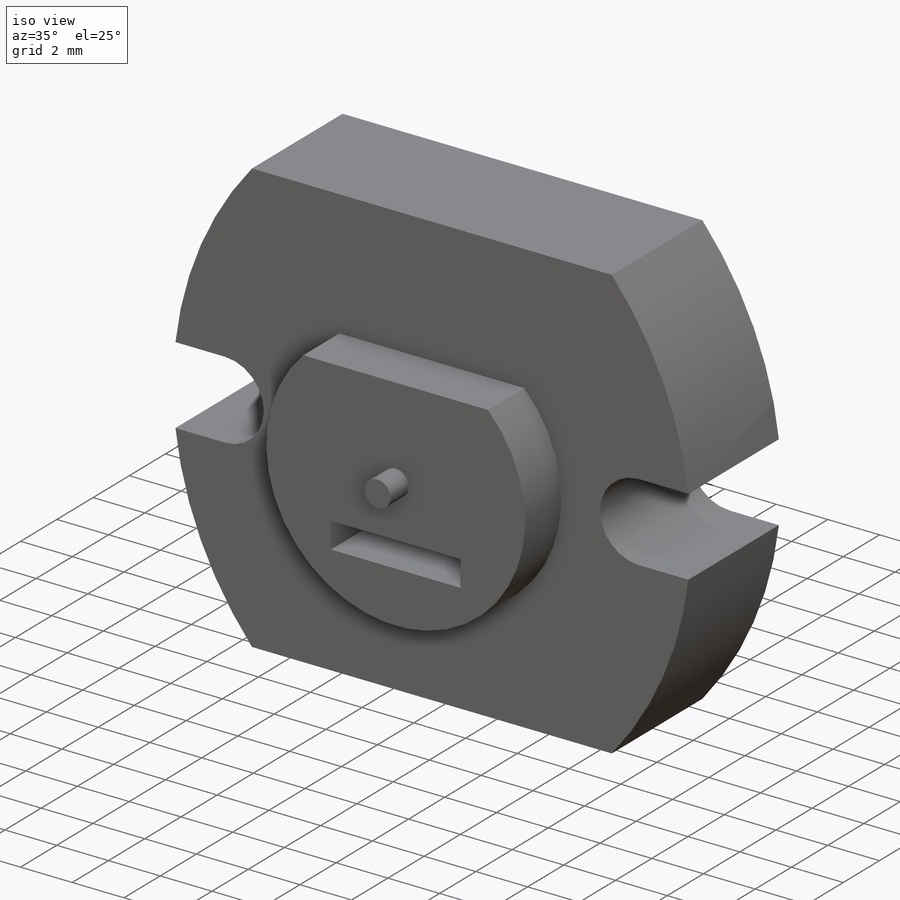
[diagram: iso view]
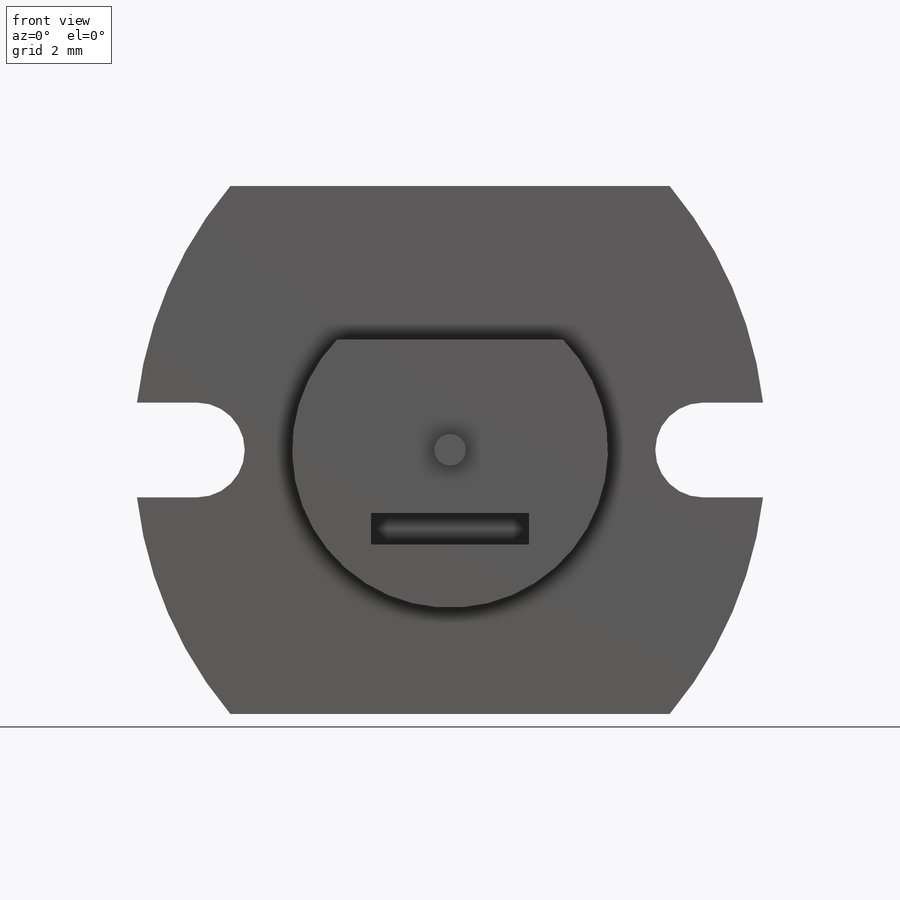
[diagram: front view]
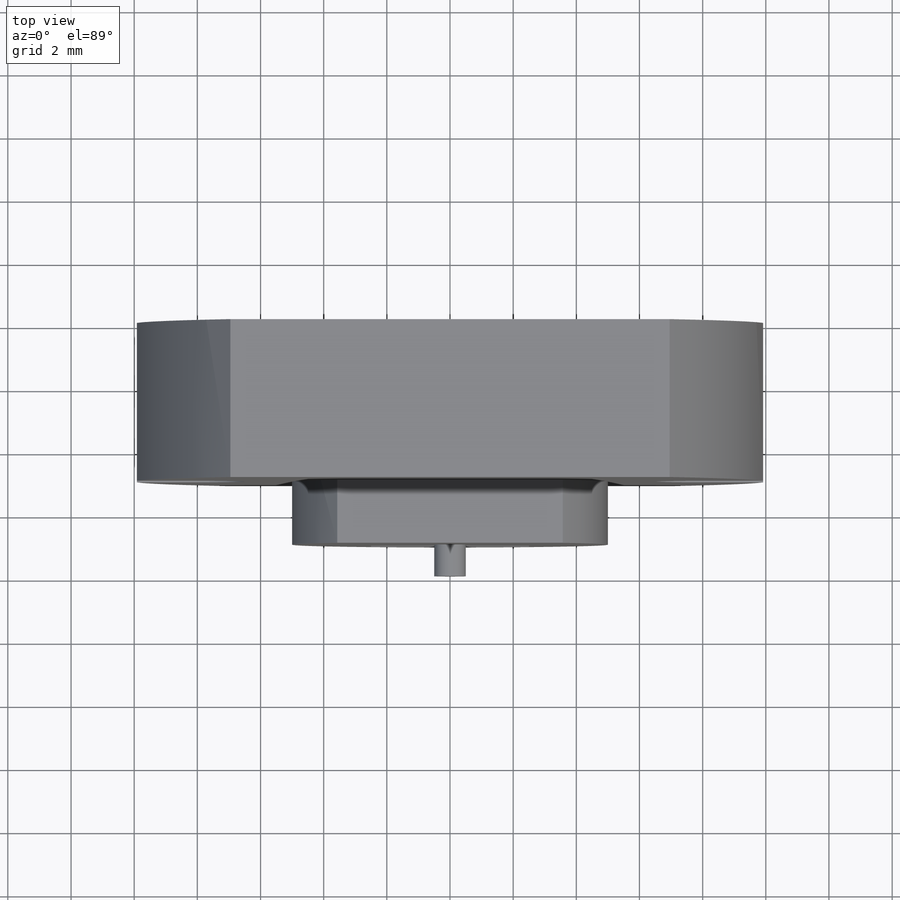
[diagram: top view]
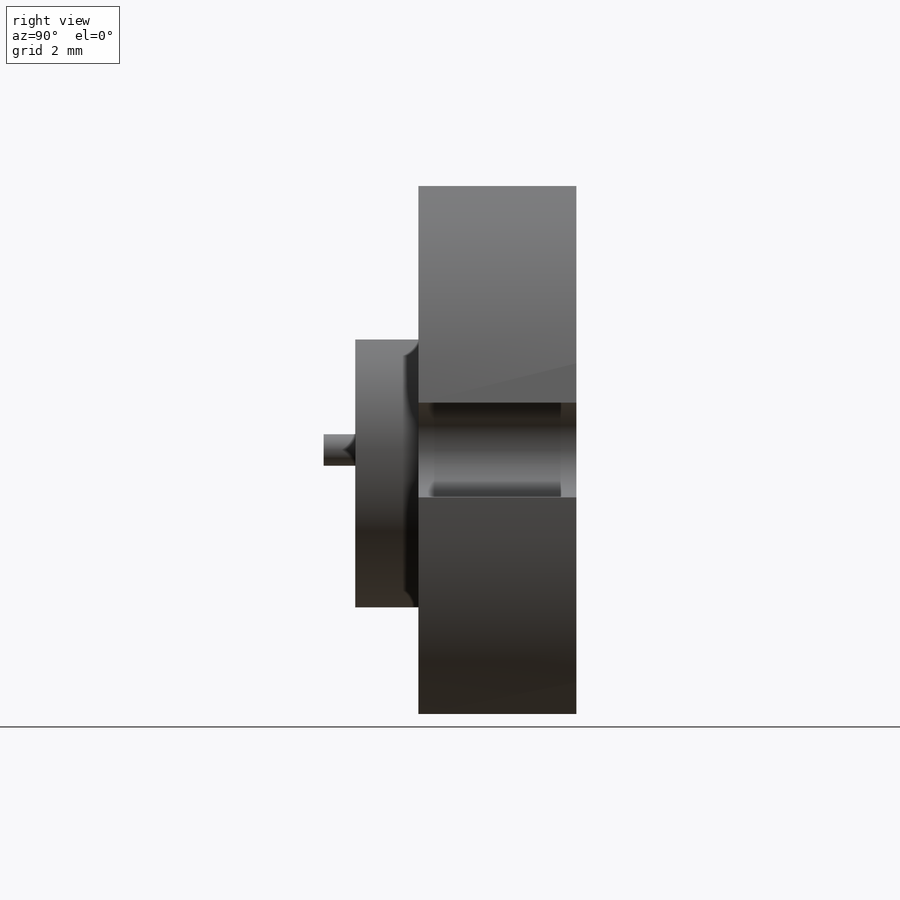
[diagram: right view]
SOLIDWORKS PART (.sldprt)
format: sldprt  version: not decoded by parser v0  size: 218,624 bytes
history: native  units: mm
features: sketch x5, extrude x3, cut_extrude x2, material x1 (+13 scaffold rows collapsed)
feature tree (24):
  scaffold x13  (default folders/planes/origin — collapsed)
  material  "Material <not specified>"
  sketch  "Sketch1"  dims[c1.D5=13.0mm c1.D1=13.0mm c1.D3=13.0mm c2.D1=20.0mm c2.D2=10.0mm c2.D3=8.36mm c2.D4=8.36mm c2.D5=10.0mm c2.D6=10.0mm c3.D5=3.0mm c3.D1=8.36mm c3.D2=~13.910841mm c3.D3=10.0mm c3.D4=10.0mm]
  extrude  "Boss-Extrude2"  Depth=5mm
  sketch  "Sketch2"  dims[D1=3.0mm D3=~20.851204mm D2=2.0mm]
  cut_extrude  "Cut-Extrude1"  Depth=5mm
  sketch  "Sketch3"  dims[D1=1.0mm]
  extrude  "Boss-Extrude3"  Depth=3mm
  sketch  "Sketch4"  dims[D1=10.0mm D2=3.5mm]
  extrude  "Boss-Extrude4"  Depth=2mm
  sketch  "Sketch5"  dims[D1=1.0mm 3=5.0mm D2=3.0mm]
  cut_extrude  "Cut-Extrude2"  Depth=2mm
decode coverage: 10 of 10 modeling features carry decoded parameters
note: ~ marks probable driven/reference dimensions
note: suppression state not decoded; provenance and decode notes live in map.json
